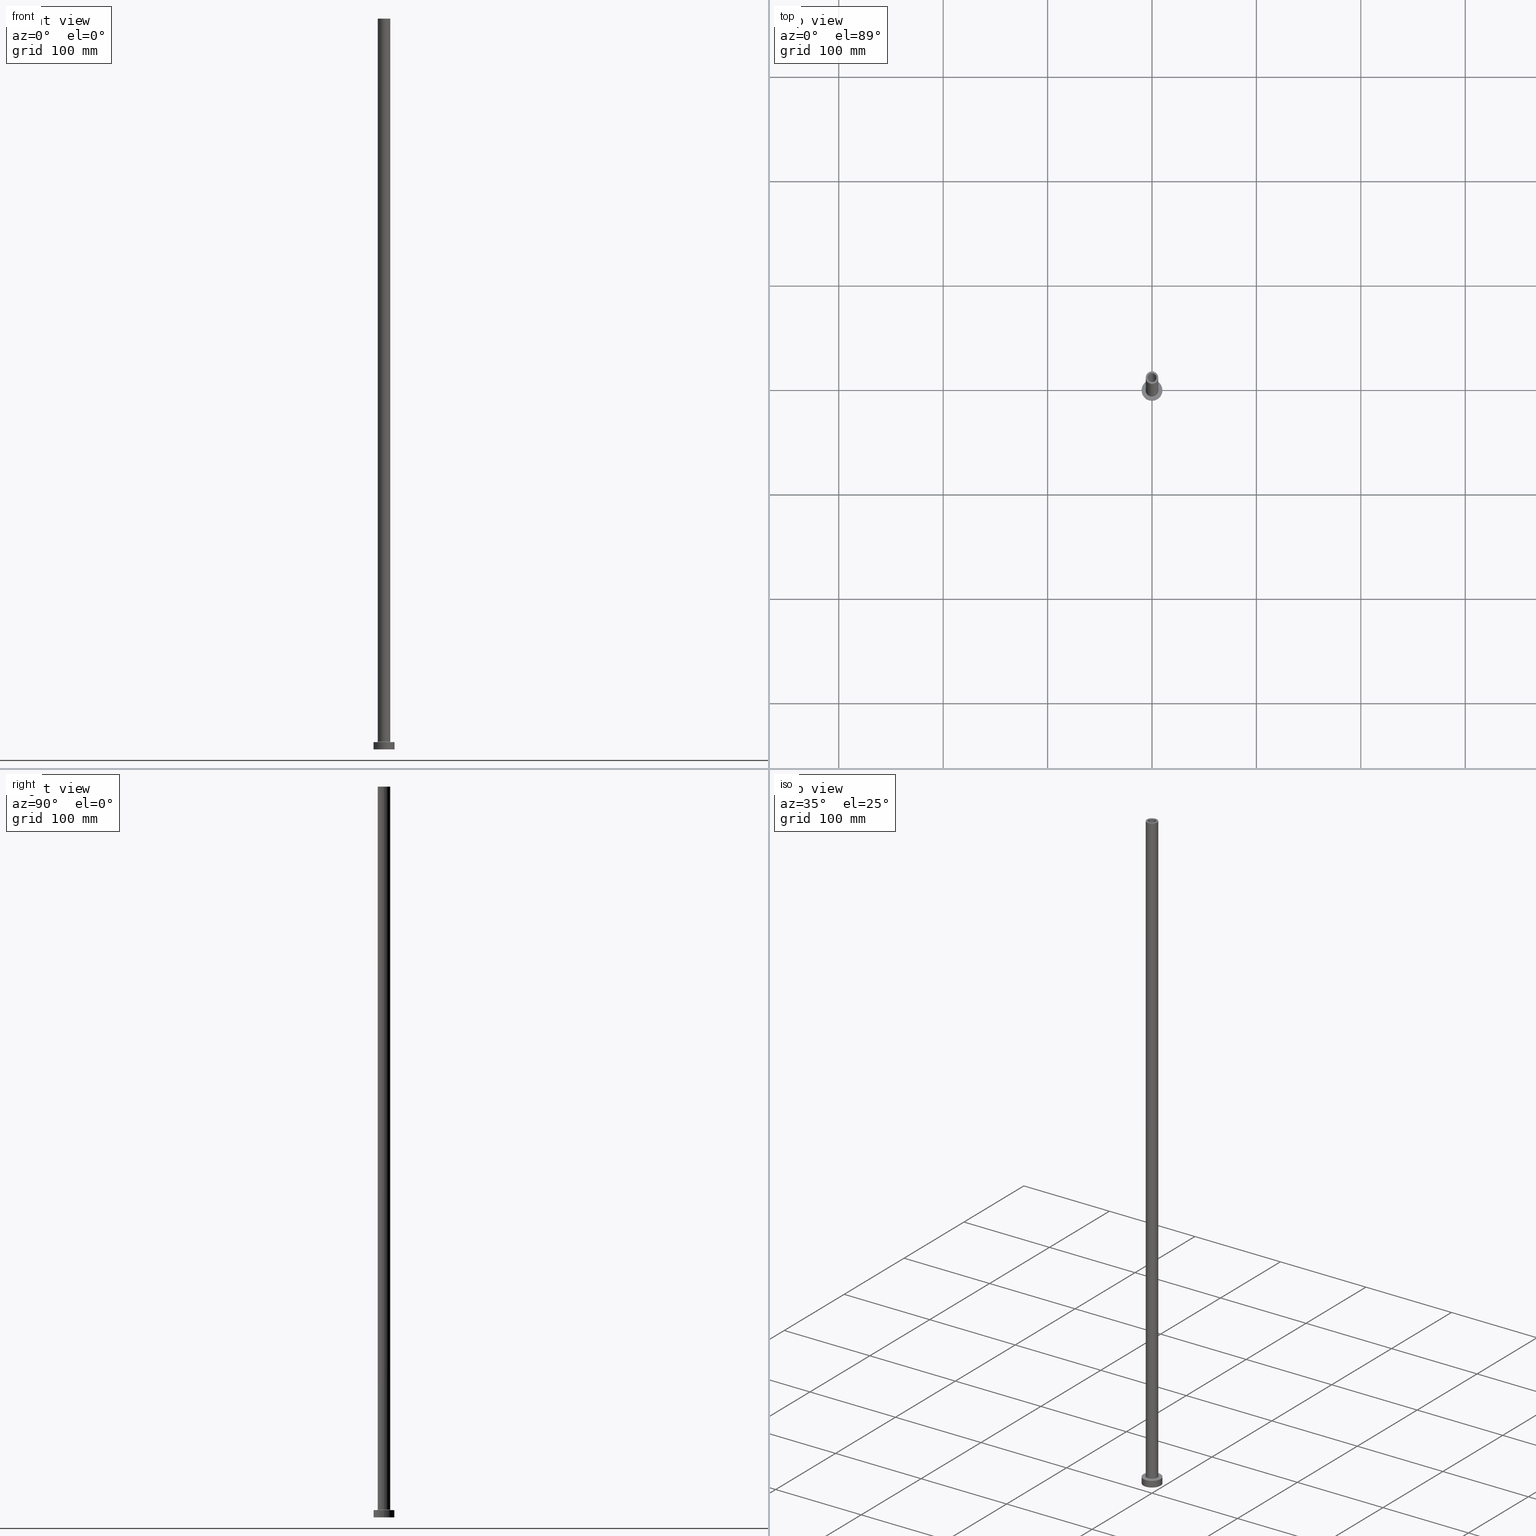
[diagram: canonical four-view strip — front | top / right | iso, engineering-drawing reading convention]
A machine part, canonical four-view strip (front | top / right | iso — engineering-drawing reading convention). The complete STEP part file that produces these views, byte-faithful:
ISO-10303-21;
HEADER;
FILE_DESCRIPTION (( 'STEP AP203' ),
    '1' );
FILE_NAME ('b7ef.STEP',
    '2023-02-13T11:54:43',
    ( '' ),
    ( '' ),
    'SwSTEP 2.0',
    'SolidWorks 2019',
    '' );
FILE_SCHEMA (( 'CONFIG_CONTROL_DESIGN' ));
ENDSEC;

DATA;
#1 = ORIENTED_EDGE ( 'NONE', *, *, #290, .T. ) ;
#2 = COORDINATED_UNIVERSAL_TIME_OFFSET ( 1, 0, .AHEAD. ) ;
#3 = FACE_OUTER_BOUND ( 'NONE', #113, .T. ) ;
#4 = EDGE_LOOP ( 'NONE', ( #304, #75 ) ) ;
#5 = PRODUCT_RELATED_PRODUCT_CATEGORY ( 'detail', '', ( #396 ) ) ;
#6 = AXIS2_PLACEMENT_3D ( 'NONE', #115, #302, #378 ) ;
#7 = FACE_OUTER_BOUND ( 'NONE', #260, .T. ) ;
#8 = ORIENTED_EDGE ( 'NONE', *, *, #133, .T. ) ;
#9 = CARTESIAN_POINT ( 'NONE',  ( 6.000000000000000888, 7.347880794884120722E-16, 7.700000000000040146 ) ) ;
#10 = DIRECTION ( 'NONE',  ( -1.000000000000000000, 0.000000000000000000, 0.000000000000000000 ) ) ;
#11 = EDGE_LOOP ( 'NONE', ( #230, #191, #46, #22 ) ) ;
#12 = AXIS2_PLACEMENT_3D ( 'NONE', #247, #310, #387 ) ;
#13 = CARTESIAN_POINT ( 'NONE',  ( 0.000000000000000000, 0.000000000000000000, 0.000000000000000000 ) ) ;
#14 = EDGE_CURVE ( 'NONE', #168, #148, #96, .T. ) ;
#15 = FACE_OUTER_BOUND ( 'NONE', #4, .T. ) ;
#16 = DIRECTION ( 'NONE',  ( -1.000000000000000000, 0.000000000000000000, 0.000000000000000000 ) ) ;
#17 = CYLINDRICAL_SURFACE ( 'NONE', #6, 10.00000000000000000 ) ;
#18 = DIRECTION ( 'NONE',  ( 0.000000000000000000, 0.000000000000000000, 1.000000000000000000 ) ) ;
#19 = EDGE_LOOP ( 'NONE', ( #108, #1 ) ) ;
#20 = AXIS2_PLACEMENT_3D ( 'NONE', #249, #179, #359 ) ;
#21 = CARTESIAN_POINT ( 'NONE',  ( -10.00000000000000000, 0.000000000000000000, 0.000000000000000000 ) ) ;
#22 = ORIENTED_EDGE ( 'NONE', *, *, #400, .F. ) ;
#23 = ADVANCED_FACE ( 'NONE', ( #235, #237 ), #379, .F. ) ;
#24 = CALENDAR_DATE ( 2023, 13, 2 ) ;
#25 = AXIS2_PLACEMENT_3D ( 'NONE', #121, #198, #416 ) ;
#26 = PERSON_AND_ORGANIZATION_ROLE ( 'creator' ) ;
#27 = VERTEX_POINT ( 'NONE', #71 ) ;
#28 = COORDINATED_UNIVERSAL_TIME_OFFSET ( 1, 0, .AHEAD. ) ;
#29 = CIRCLE ( 'NONE', #429, 4.250000000000000000 ) ;
#30 = VECTOR ( 'NONE', #300, 1000.000000000000000 ) ;
#31 = LINE ( 'NONE', #273, #69 ) ;
#32 = CALENDAR_DATE ( 2023, 13, 2 ) ;
#33 = CARTESIAN_POINT ( 'NONE',  ( 10.00000000000000000, 1.224646799147353256E-15, 7.000000000000000000 ) ) ;
#34 = ORIENTED_EDGE ( 'NONE', *, *, #133, .F. ) ;
#35 = DIRECTION ( 'NONE',  ( -0.000000000000000000, -0.000000000000000000, -1.000000000000000000 ) ) ;
#36 = AXIS2_PLACEMENT_3D ( 'NONE', #44, #124, #265 ) ;
#37 = CALENDAR_DATE ( 2023, 13, 2 ) ;
#38 = EDGE_CURVE ( 'NONE', #456, #318, #369, .T. ) ;
#39 = VERTEX_POINT ( 'NONE', #33 ) ;
#40 = DIRECTION ( 'NONE',  ( -0.000000000000000000, -0.000000000000000000, -1.000000000000000000 ) ) ;
#41 = AXIS2_PLACEMENT_3D ( 'NONE', #370, #226, #146 ) ;
#42 = APPROVAL_DATE_TIME ( #141, #432 ) ;
#43 = EDGE_LOOP ( 'NONE', ( #298, #111 ) ) ;
#44 = CARTESIAN_POINT ( 'NONE',  ( 0.000000000000000000, 0.000000000000000000, 667.4450793488831550 ) ) ;
#45 = LINE ( 'NONE', #433, #460 ) ;
#46 = ORIENTED_EDGE ( 'NONE', *, *, #245, .T. ) ;
#47 = CC_DESIGN_DATE_AND_TIME_ASSIGNMENT ( #386, #68, ( #365 ) ) ;
#48 = DIRECTION ( 'NONE',  ( 1.000000000000000000, 0.000000000000000000, 0.000000000000000000 ) ) ;
#49 = DIRECTION ( 'NONE',  ( 0.000000000000000000, 0.000000000000000000, 1.000000000000000000 ) ) ;
#50 = CIRCLE ( 'NONE', #218, 10.00000000000000000 ) ;
#51 = DIRECTION ( 'NONE',  ( 0.000000000000000000, 0.000000000000000000, -1.000000000000000000 ) ) ;
#52 = CARTESIAN_POINT ( 'NONE',  ( 4.250000000000000000, 5.204748896376250699E-16, 700.0000000000000000 ) ) ;
#53 = CYLINDRICAL_SURFACE ( 'NONE', #36, 4.400000000000000355 ) ;
#54 = ORIENTED_EDGE ( 'NONE', *, *, #65, .T. ) ;
#55 = AXIS2_PLACEMENT_3D ( 'NONE', #427, #279, #352 ) ;
#56 = CIRCLE ( 'NONE', #118, 6.000000000000000888 ) ;
#57 = CARTESIAN_POINT ( 'NONE',  ( -4.400000000000000355, 0.000000000000000000, 0.000000000000000000 ) ) ;
#58 = CARTESIAN_POINT ( 'NONE',  ( 0.000000000000000000, 0.000000000000000000, 654.9999999999998863 ) ) ;
#59 = DIRECTION ( 'NONE',  ( -0.000000000000000000, -0.000000000000000000, -1.000000000000000000 ) ) ;
#60 = ADVANCED_FACE ( 'NONE', ( #166, #403 ), #119, .F. ) ;
#61 = CARTESIAN_POINT ( 'NONE',  ( 0.000000000000000000, 0.000000000000000000, 0.000000000000000000 ) ) ;
#62 = PERSON_AND_ORGANIZATION_ROLE ( 'classification_officer' ) ;
#63 = AXIS2_PLACEMENT_3D ( 'NONE', #61, #312, #212 ) ;
#64 = ORIENTED_EDGE ( 'NONE', *, *, #308, .T. ) ;
#65 = EDGE_CURVE ( 'NONE', #289, #73, #425, .T. ) ;
#66 = APPROVAL_STATUS ( 'not_yet_approved' ) ;
#67 = DIRECTION ( 'NONE',  ( 1.000000000000000000, 0.000000000000000000, 0.000000000000000000 ) ) ;
#68 = DATE_TIME_ROLE ( 'creation_date' ) ;
#69 = VECTOR ( 'NONE', #452, 1000.000000000000000 ) ;
#70 = EDGE_CURVE ( 'NONE', #27, #39, #50, .T. ) ;
#71 = CARTESIAN_POINT ( 'NONE',  ( -10.00000000000000000, 0.000000000000000000, 7.000000000000000000 ) ) ;
#72 = ORIENTED_EDGE ( 'NONE', *, *, #65, .F. ) ;
#73 = VERTEX_POINT ( 'NONE', #258 ) ;
#74 = AXIS2_PLACEMENT_3D ( 'NONE', #328, #262, #188 ) ;
#75 = ORIENTED_EDGE ( 'NONE', *, *, #205, .T. ) ;
#76 = EDGE_CURVE ( 'NONE', #73, #168, #78, .T. ) ;
#77 = AXIS2_PLACEMENT_3D ( 'NONE', #13, #222, #143 ) ;
#78 = LINE ( 'NONE', #442, #411 ) ;
#79 = CARTESIAN_POINT ( 'NONE',  ( -6.000000000000000888, 0.000000000000000000, 700.0000000000000000 ) ) ;
#80 = APPROVAL ( #167, 'NEUR�EN�' ) ;
#81 = CARTESIAN_POINT ( 'NONE',  ( -6.000000000000000888, 0.000000000000000000, 700.0000000000000000 ) ) ;
#82 = AXIS2_PLACEMENT_3D ( 'NONE', #86, #49, #192 ) ;
#83 = CARTESIAN_POINT ( 'NONE',  ( 0.000000000000000000, 0.000000000000000000, 7.000000000000000000 ) ) ;
#84 = CARTESIAN_POINT ( 'NONE',  ( 0.000000000000000000, 0.000000000000000000, 0.000000000000000000 ) ) ;
#85 = VERTEX_POINT ( 'NONE', #81 ) ;
#86 = CARTESIAN_POINT ( 'NONE',  ( 0.000000000000000000, 0.000000000000000000, 700.0000000000000000 ) ) ;
#87 = CARTESIAN_POINT ( 'NONE',  ( 0.000000000000000000, 0.000000000000000000, 7.000000000000000000 ) ) ;
#88 = EDGE_LOOP ( 'NONE', ( #315, #435 ) ) ;
#89 = PLANE ( 'NONE',  #220 ) ;
#90 = TOROIDAL_SURFACE ( 'NONE', #278, 6.700000000000001066, 0.6999999999999999556 ) ;
#91 = CC_DESIGN_PERSON_AND_ORGANIZATION_ASSIGNMENT ( #350, #26, ( #365 ) ) ;
#92 = FACE_OUTER_BOUND ( 'NONE', #221, .T. ) ;
#93 = ORIENTED_EDGE ( 'NONE', *, *, #287, .T. ) ;
#94 = PERSON ( 'NEUR�EN�', 'NEUR�EN�', 'NEUR�EN�', ('NEUR�EN�'), ('NEUR�EN�'), ('NEUR�EN�') ) ;
#95 = FACE_OUTER_BOUND ( 'NONE', #349, .T. ) ;
#96 = CIRCLE ( 'NONE', #360, 4.250000000000000000 ) ;
#97 = DIRECTION ( 'NONE',  ( 0.000000000000000000, 0.000000000000000000, 1.000000000000000000 ) ) ;
#98 = ADVANCED_FACE ( 'NONE', ( #7 ), #223, .T. ) ;
#99 = CIRCLE ( 'NONE', #82, 6.000000000000000888 ) ;
#100 = APPROVAL_ROLE ( '' ) ;
#101 = CIRCLE ( 'NONE', #422, 4.400000000000000355 ) ;
#102 = CLOSED_SHELL ( 'NONE', ( #217, #346, #455, #261, #438, #321, #138, #60, #98, #408, #193, #355, #23, #184 ) ) ;
#103 = CARTESIAN_POINT ( 'NONE',  ( -6.000000000000000888, 0.000000000000000000, 7.700000000000040146 ) ) ;
#104 = ORIENTED_EDGE ( 'NONE', *, *, #176, .F. ) ;
#105 = ORIENTED_EDGE ( 'NONE', *, *, #70, .F. ) ;
#106 = PLANE ( 'NONE',  #20 ) ;
#107 = SHAPE_DEFINITION_REPRESENTATION ( #180, #299 ) ;
#108 = ORIENTED_EDGE ( 'NONE', *, *, #70, .T. ) ;
#109 = COORDINATED_UNIVERSAL_TIME_OFFSET ( 1, 0, .AHEAD. ) ;
#110 = DIRECTION ( 'NONE',  ( 1.000000000000000000, 0.000000000000000000, 0.000000000000000000 ) ) ;
#111 = ORIENTED_EDGE ( 'NONE', *, *, #172, .F. ) ;
#112 = EDGE_CURVE ( 'NONE', #210, #456, #324, .T. ) ;
#113 = EDGE_LOOP ( 'NONE', ( #142, #93, #446, #283 ) ) ;
#114 = ORIENTED_EDGE ( 'NONE', *, *, #329, .F. ) ;
#115 = CARTESIAN_POINT ( 'NONE',  ( 0.000000000000000000, 0.000000000000000000, 7.000000000000000000 ) ) ;
#116 = CYLINDRICAL_SURFACE ( 'NONE', #238, 4.250000000000000000 ) ;
#117 = CARTESIAN_POINT ( 'NONE',  ( 6.000000000000000888, 7.347880794884120722E-16, 700.0000000000000000 ) ) ;
#118 = AXIS2_PLACEMENT_3D ( 'NONE', #340, #18, #246 ) ;
#119 = PLANE ( 'NONE',  #77 ) ;
#120 = DIRECTION ( 'NONE',  ( 1.000000000000000000, 0.000000000000000000, 0.000000000000000000 ) ) ;
#121 = CARTESIAN_POINT ( 'NONE',  ( 0.000000000000000000, 0.000000000000000000, 0.000000000000000000 ) ) ;
#122 = CYLINDRICAL_SURFACE ( 'NONE', #414, 10.00000000000000000 ) ;
#123 = DESIGN_CONTEXT ( 'detailed design', #294, 'design' ) ;
#124 = DIRECTION ( 'NONE',  ( 0.000000000000000000, 0.000000000000000000, -1.000000000000000000 ) ) ;
#125 = AXIS2_PLACEMENT_3D ( 'NONE', #430, #40, #271 ) ;
#126 = COORDINATED_UNIVERSAL_TIME_OFFSET ( 1, 0, .AHEAD. ) ;
#127 = PERSON_AND_ORGANIZATION ( #94, #145 ) ;
#128 = CC_DESIGN_DATE_AND_TIME_ASSIGNMENT ( #144, #395, ( #348 ) ) ;
#129 = AXIS2_PLACEMENT_3D ( 'NONE', #150, #51, #397 ) ;
#130 = CARTESIAN_POINT ( 'NONE',  ( 0.000000000000000000, 0.000000000000000000, 7.700000000000040146 ) ) ;
#131 =( GEOMETRIC_REPRESENTATION_CONTEXT ( 3 ) GLOBAL_UNCERTAINTY_ASSIGNED_CONTEXT ( ( #154 ) ) GLOBAL_UNIT_ASSIGNED_CONTEXT ( ( #347, #453, #275 ) ) REPRESENTATION_CONTEXT ( 'NONE', 'WORKASPACE' ) );
#132 = EDGE_LOOP ( 'NONE', ( #173, #333, #320, #8 ) ) ;
#133 = EDGE_CURVE ( 'NONE', #443, #251, #440, .T. ) ;
#134 = CALENDAR_DATE ( 2023, 13, 2 ) ;
#135 = AXIS2_PLACEMENT_3D ( 'NONE', #450, #59, #407 ) ;
#136 = PRODUCT_DEFINITION_FORMATION_WITH_SPECIFIED_SOURCE ( 'LIBOVOLN�', '', #396, .NOT_KNOWN. ) ;
#137 = LOCAL_TIME ( 12, 54, 43.00000000000000000, #109 ) ;
#138 = ADVANCED_FACE ( 'NONE', ( #140, #434 ), #106, .T. ) ;
#139 = ORIENTED_EDGE ( 'NONE', *, *, #458, .T. ) ;
#140 = FACE_BOUND ( 'NONE', #362, .T. ) ;
#141 = DATE_AND_TIME ( #37, #137 ) ;
#142 = ORIENTED_EDGE ( 'NONE', *, *, #205, .F. ) ;
#143 = DIRECTION ( 'NONE',  ( 1.000000000000000000, 0.000000000000000000, -0.000000000000000000 ) ) ;
#144 = DATE_AND_TIME ( #134, #417 ) ;
#145 = ORGANIZATION ( 'NEUR�EN�', 'NEUR�EN�', '' ) ;
#146 = DIRECTION ( 'NONE',  ( 1.000000000000000000, 0.000000000000000000, 0.000000000000000000 ) ) ;
#147 = CARTESIAN_POINT ( 'NONE',  ( 0.000000000000000000, 0.000000000000000000, 700.0000000000000000 ) ) ;
#148 = VERTEX_POINT ( 'NONE', #288 ) ;
#149 = EDGE_CURVE ( 'NONE', #85, #426, #202, .T. ) ;
#150 = CARTESIAN_POINT ( 'NONE',  ( 0.000000000000000000, 0.000000000000000000, 700.0000000000000000 ) ) ;
#151 = CARTESIAN_POINT ( 'NONE',  ( 0.000000000000000000, 0.000000000000000000, 654.9999999999998863 ) ) ;
#152 = CARTESIAN_POINT ( 'NONE',  ( 0.000000000000000000, 0.000000000000000000, 700.0000000000000000 ) ) ;
#153 = FACE_OUTER_BOUND ( 'NONE', #11, .T. ) ;
#154 = UNCERTAINTY_MEASURE_WITH_UNIT (LENGTH_MEASURE( 1.000000000000000082E-05 ), #347, 'distance_accuracy_value', 'NONE');
#155 = CIRCLE ( 'NONE', #55, 0.7000000000000000666 ) ;
#156 = CARTESIAN_POINT ( 'NONE',  ( 10.00000000000000000, 1.224646799147353256E-15, 7.000000000000000000 ) ) ;
#157 = FACE_BOUND ( 'NONE', #263, .T. ) ;
#158 = APPROVAL ( #66, 'NEUR�EN�' ) ;
#159 = FACE_OUTER_BOUND ( 'NONE', #293, .T. ) ;
#160 = CARTESIAN_POINT ( 'NONE',  ( 6.000000000000000888, 7.347880794884120722E-16, 700.0000000000000000 ) ) ;
#161 = EDGE_CURVE ( 'NONE', #339, #251, #31, .T. ) ;
#162 = CALENDAR_DATE ( 2023, 13, 2 ) ;
#163 = APPROVAL_PERSON_ORGANIZATION ( #244, #80, #215 ) ;
#164 = PERSON_AND_ORGANIZATION ( #94, #145 ) ;
#165 = CARTESIAN_POINT ( 'NONE',  ( 0.000000000000000000, 0.000000000000000000, 654.9999999999998863 ) ) ;
#166 = FACE_BOUND ( 'NONE', #219, .T. ) ;
#167 = APPROVAL_STATUS ( 'not_yet_approved' ) ;
#168 = VERTEX_POINT ( 'NONE', #269 ) ;
#169 = CARTESIAN_POINT ( 'NONE',  ( 6.700000000000001066, 0.000000000000000000, 7.000000000000020428 ) ) ;
#170 = APPROVAL_DATE_TIME ( #353, #158 ) ;
#171 = LOCAL_TIME ( 12, 54, 43.00000000000000000, #28 ) ;
#172 = EDGE_CURVE ( 'NONE', #356, #431, #196, .T. ) ;
#173 = ORIENTED_EDGE ( 'NONE', *, *, #161, .F. ) ;
#174 = EDGE_LOOP ( 'NONE', ( #104, #54, #451, #314 ) ) ;
#175 = CARTESIAN_POINT ( 'NONE',  ( 0.000000000000000000, 0.000000000000000000, 700.0000000000000000 ) ) ;
#176 = EDGE_CURVE ( 'NONE', #289, #148, #233, .T. ) ;
#177 = CIRCLE ( 'NONE', #242, 4.400000000000000355 ) ;
#178 = ORIENTED_EDGE ( 'NONE', *, *, #161, .T. ) ;
#179 = DIRECTION ( 'NONE',  ( 0.000000000000000000, 0.000000000000000000, 1.000000000000000000 ) ) ;
#180 = PRODUCT_DEFINITION_SHAPE ( 'NONE', 'NONE',  #365 ) ;
#181 = ORIENTED_EDGE ( 'NONE', *, *, #287, .F. ) ;
#182 = AXIS2_PLACEMENT_3D ( 'NONE', #83, #441, #240 ) ;
#183 = VERTEX_POINT ( 'NONE', #409 ) ;
#184 = ADVANCED_FACE ( 'NONE', ( #368 ), #116, .F. ) ;
#185 = ORIENTED_EDGE ( 'NONE', *, *, #316, .T. ) ;
#186 = DIRECTION ( 'NONE',  ( 0.000000000000000000, 0.000000000000000000, 1.000000000000000000 ) ) ;
#187 = ORIENTED_EDGE ( 'NONE', *, *, #38, .T. ) ;
#188 = DIRECTION ( 'NONE',  ( 1.000000000000000000, 0.000000000000000000, 0.000000000000000000 ) ) ;
#189 = DIRECTION ( 'NONE',  ( 1.000000000000000000, 0.000000000000000000, 0.000000000000000000 ) ) ;
#190 = DIRECTION ( 'NONE',  ( 0.000000000000000000, 0.000000000000000000, -1.000000000000000000 ) ) ;
#191 = ORIENTED_EDGE ( 'NONE', *, *, #112, .F. ) ;
#192 = DIRECTION ( 'NONE',  ( 1.000000000000000000, 0.000000000000000000, 0.000000000000000000 ) ) ;
#193 = ADVANCED_FACE ( 'NONE', ( #153 ), #286, .F. ) ;
#194 = DIRECTION ( 'NONE',  ( 0.000000000000000000, 0.000000000000000000, -1.000000000000000000 ) ) ;
#195 = LINE ( 'NONE', #117, #214 ) ;
#196 = CIRCLE ( 'NONE', #25, 10.00000000000000000 ) ;
#197 = AXIS2_PLACEMENT_3D ( 'NONE', #87, #343, #189 ) ;
#198 = DIRECTION ( 'NONE',  ( 0.000000000000000000, 0.000000000000000000, 1.000000000000000000 ) ) ;
#199 = DIRECTION ( 'NONE',  ( -0.000000000000000000, -0.000000000000000000, -1.000000000000000000 ) ) ;
#200 = DIRECTION ( 'NONE',  ( 1.000000000000000000, 0.000000000000000000, 0.000000000000000000 ) ) ;
#201 = CARTESIAN_POINT ( 'NONE',  ( 0.000000000000000000, 0.000000000000000000, 0.000000000000000000 ) ) ;
#202 = CIRCLE ( 'NONE', #277, 6.000000000000000888 ) ;
#203 = PERSON_AND_ORGANIZATION_ROLE ( 'design_owner' ) ;
#204 = CARTESIAN_POINT ( 'NONE',  ( 0.000000000000000000, 0.000000000000000000, 700.0000000000000000 ) ) ;
#205 = EDGE_CURVE ( 'NONE', #426, #85, #99, .T. ) ;
#206 = MECHANICAL_CONTEXT ( 'NONE', #363, 'mechanical' ) ;
#207 = ORIENTED_EDGE ( 'NONE', *, *, #296, .T. ) ;
#208 = CC_DESIGN_SECURITY_CLASSIFICATION ( #348, ( #136 ) ) ;
#209 = COORDINATED_UNIVERSAL_TIME_OFFSET ( 1, 0, .AHEAD. ) ;
#210 = VERTEX_POINT ( 'NONE', #9 ) ;
#211 = AXIS2_PLACEMENT_3D ( 'NONE', #225, #372, #405 ) ;
#212 = DIRECTION ( 'NONE',  ( 1.000000000000000000, 0.000000000000000000, 0.000000000000000000 ) ) ;
#213 = EDGE_CURVE ( 'NONE', #39, #356, #419, .T. ) ;
#214 = VECTOR ( 'NONE', #447, 1000.000000000000000 ) ;
#215 = APPROVAL_ROLE ( '' ) ;
#216 = AXIS2_PLACEMENT_3D ( 'NONE', #201, #257, #297 ) ;
#217 = ADVANCED_FACE ( 'NONE', ( #358 ), #330, .F. ) ;
#218 = AXIS2_PLACEMENT_3D ( 'NONE', #373, #332, #399 ) ;
#219 = EDGE_LOOP ( 'NONE', ( #34, #114 ) ) ;
#220 = AXIS2_PLACEMENT_3D ( 'NONE', #152, #337, #444 ) ;
#221 = EDGE_LOOP ( 'NONE', ( #139, #178, #385, #342 ) ) ;
#222 = DIRECTION ( 'NONE',  ( 0.000000000000000000, 0.000000000000000000, 1.000000000000000000 ) ) ;
#223 = CYLINDRICAL_SURFACE ( 'NONE', #266, 6.000000000000000888 ) ;
#224 = CARTESIAN_POINT ( 'NONE',  ( 4.250000000000000000, 5.204748896376250699E-16, 700.0000000000000000 ) ) ;
#225 = CARTESIAN_POINT ( 'NONE',  ( 0.000000000000000000, 0.000000000000000000, 7.700000000000040146 ) ) ;
#226 = DIRECTION ( 'NONE',  ( 0.000000000000000000, 0.000000000000000000, 1.000000000000000000 ) ) ;
#227 = CARTESIAN_POINT ( 'NONE',  ( 4.400000000000000355, 5.388445916248354013E-16, 654.9999999999998863 ) ) ;
#228 = CARTESIAN_POINT ( 'NONE',  ( 0.000000000000000000, 0.000000000000000000, 700.0000000000000000 ) ) ;
#229 = DIRECTION ( 'NONE',  ( -0.000000000000000000, -0.000000000000000000, -1.000000000000000000 ) ) ;
#230 = ORIENTED_EDGE ( 'NONE', *, *, #38, .F. ) ;
#231 = CARTESIAN_POINT ( 'NONE',  ( 4.400000000000000355, 5.388445916248354013E-16, 0.000000000000000000 ) ) ;
#232 = EDGE_CURVE ( 'NONE', #27, #431, #45, .T. ) ;
#233 = LINE ( 'NONE', #52, #325 ) ;
#234 = DIRECTION ( 'NONE',  ( 0.000000000000000000, 0.000000000000000000, -1.000000000000000000 ) ) ;
#235 = FACE_BOUND ( 'NONE', #391, .T. ) ;
#236 = CARTESIAN_POINT ( 'NONE',  ( -4.400000000000000355, 0.000000000000000000, 667.4450793488831550 ) ) ;
#237 = FACE_OUTER_BOUND ( 'NONE', #88, .T. ) ;
#238 = AXIS2_PLACEMENT_3D ( 'NONE', #228, #190, #16 ) ;
#239 = LOCAL_TIME ( 12, 54, 43.00000000000000000, #209 ) ;
#240 = DIRECTION ( 'NONE',  ( 1.000000000000000000, 0.000000000000000000, 0.000000000000000000 ) ) ;
#241 = DIRECTION ( 'NONE',  ( 1.000000000000000000, 0.000000000000000000, 0.000000000000000000 ) ) ;
#242 = AXIS2_PLACEMENT_3D ( 'NONE', #371, #199, #305 ) ;
#243 = CYLINDRICAL_SURFACE ( 'NONE', #135, 6.000000000000000888 ) ;
#244 = PERSON_AND_ORGANIZATION ( #94, #145 ) ;
#245 = EDGE_CURVE ( 'NONE', #210, #248, #155, .T. ) ;
#246 = DIRECTION ( 'NONE',  ( 1.000000000000000000, 0.000000000000000000, 0.000000000000000000 ) ) ;
#247 = CARTESIAN_POINT ( 'NONE',  ( -6.700000000000001066, 8.205133554287267548E-16, 7.700000000000040146 ) ) ;
#248 = VERTEX_POINT ( 'NONE', #169 ) ;
#249 = CARTESIAN_POINT ( 'NONE',  ( 0.000000000000000000, 0.000000000000000000, 7.000000000000000000 ) ) ;
#250 = EDGE_CURVE ( 'NONE', #73, #289, #29, .T. ) ;
#251 = VERTEX_POINT ( 'NONE', #231 ) ;
#252 = ORIENTED_EDGE ( 'NONE', *, *, #400, .T. ) ;
#253 = DIRECTION ( 'NONE',  ( 1.000000000000000000, 0.000000000000000000, -0.000000000000000000 ) ) ;
#254 = ORIENTED_EDGE ( 'NONE', *, *, #250, .T. ) ;
#255 = APPROVAL_ROLE ( '' ) ;
#256 = EDGE_CURVE ( 'NONE', #248, #318, #345, .T. ) ;
#257 = DIRECTION ( 'NONE',  ( 0.000000000000000000, 0.000000000000000000, 1.000000000000000000 ) ) ;
#258 = CARTESIAN_POINT ( 'NONE',  ( -4.250000000000000000, 0.000000000000000000, 700.0000000000000000 ) ) ;
#259 = LINE ( 'NONE', #79, #30 ) ;
#260 = EDGE_LOOP ( 'NONE', ( #181, #437, #185, #357 ) ) ;
#261 = ADVANCED_FACE ( 'NONE', ( #3 ), #243, .T. ) ;
#262 = DIRECTION ( 'NONE',  ( 0.000000000000000000, 0.000000000000000000, 1.000000000000000000 ) ) ;
#263 = EDGE_LOOP ( 'NONE', ( #415, #72 ) ) ;
#264 = CARTESIAN_POINT ( 'NONE',  ( 0.000000000000000000, 0.000000000000000000, 667.4450793488831550 ) ) ;
#265 = DIRECTION ( 'NONE',  ( -1.000000000000000000, 0.000000000000000000, 0.000000000000000000 ) ) ;
#266 = AXIS2_PLACEMENT_3D ( 'NONE', #147, #335, #439 ) ;
#267 = CYLINDRICAL_SURFACE ( 'NONE', #394, 4.400000000000000355 ) ;
#268 = ORIENTED_EDGE ( 'NONE', *, *, #172, .T. ) ;
#269 = CARTESIAN_POINT ( 'NONE',  ( -4.250000000000000000, 0.000000000000000000, 654.9999999999998863 ) ) ;
#270 = APPLICATION_PROTOCOL_DEFINITION ( 'international standard', 'config_control_design', 1994, #294 ) ;
#271 = DIRECTION ( 'NONE',  ( 1.000000000000000000, 0.000000000000000000, 0.000000000000000000 ) ) ;
#272 = CC_DESIGN_APPROVAL ( #432, ( #348 ) ) ;
#273 = CARTESIAN_POINT ( 'NONE',  ( 4.400000000000000355, 5.388445916248354013E-16, 667.4450793488831550 ) ) ;
#274 = SECURITY_CLASSIFICATION_LEVEL ( 'unclassified' ) ;
#275 =( NAMED_UNIT ( * ) SI_UNIT ( $, .STERADIAN. ) SOLID_ANGLE_UNIT ( ) );
#276 = CC_DESIGN_PERSON_AND_ORGANIZATION_ASSIGNMENT ( #306, #307, ( #136 ) ) ;
#277 = AXIS2_PLACEMENT_3D ( 'NONE', #175, #317, #67 ) ;
#278 = AXIS2_PLACEMENT_3D ( 'NONE', #130, #97, #344 ) ;
#279 = DIRECTION ( 'NONE',  ( 0.000000000000000000, -1.000000000000000000, 0.000000000000000000 ) ) ;
#280 = DIRECTION ( 'NONE',  ( 0.000000000000000000, 0.000000000000000000, 1.000000000000000000 ) ) ;
#281 = DIRECTION ( 'NONE',  ( 0.000000000000000000, 0.000000000000000000, 1.000000000000000000 ) ) ;
#282 = DIRECTION ( 'NONE',  ( 1.000000000000000000, 0.000000000000000000, 0.000000000000000000 ) ) ;
#283 = ORIENTED_EDGE ( 'NONE', *, *, #316, .F. ) ;
#284 = ORIENTED_EDGE ( 'NONE', *, *, #213, .T. ) ;
#285 = EDGE_LOOP ( 'NONE', ( #390, #284, #268, #313 ) ) ;
#286 = TOROIDAL_SURFACE ( 'NONE', #74, 6.700000000000001066, 0.6999999999999999556 ) ;
#287 = EDGE_CURVE ( 'NONE', #426, #210, #195, .T. ) ;
#288 = CARTESIAN_POINT ( 'NONE',  ( 4.250000000000000000, 5.204748896376250699E-16, 654.9999999999998863 ) ) ;
#289 = VERTEX_POINT ( 'NONE', #224 ) ;
#290 = EDGE_CURVE ( 'NONE', #39, #27, #388, .T. ) ;
#291 = CIRCLE ( 'NONE', #197, 6.700000000000001066 ) ;
#292 = ORIENTED_EDGE ( 'NONE', *, *, #256, .F. ) ;
#293 = EDGE_LOOP ( 'NONE', ( #351, #105, #366, #207 ) ) ;
#294 = APPLICATION_CONTEXT ( 'configuration controlled 3d designs of mechanical parts and assemblies' ) ;
#295 = LOCAL_TIME ( 12, 54, 43.00000000000000000, #126 ) ;
#296 = EDGE_CURVE ( 'NONE', #431, #356, #301, .T. ) ;
#297 = DIRECTION ( 'NONE',  ( 1.000000000000000000, 0.000000000000000000, 0.000000000000000000 ) ) ;
#298 = ORIENTED_EDGE ( 'NONE', *, *, #296, .F. ) ;
#299 = ADVANCED_BREP_SHAPE_REPRESENTATION ( 'b7ef', ( #336, #63 ), #131 ) ;
#300 = DIRECTION ( 'NONE',  ( -0.000000000000000000, -0.000000000000000000, -1.000000000000000000 ) ) ;
#301 = CIRCLE ( 'NONE', #216, 10.00000000000000000 ) ;
#302 = DIRECTION ( 'NONE',  ( -0.000000000000000000, -0.000000000000000000, -1.000000000000000000 ) ) ;
#303 = LINE ( 'NONE', #236, #364 ) ;
#304 = ORIENTED_EDGE ( 'NONE', *, *, #149, .T. ) ;
#305 = DIRECTION ( 'NONE',  ( 1.000000000000000000, 0.000000000000000000, 0.000000000000000000 ) ) ;
#306 = PERSON_AND_ORGANIZATION ( #94, #145 ) ;
#307 = PERSON_AND_ORGANIZATION_ROLE ( 'design_supplier' ) ;
#308 = EDGE_CURVE ( 'NONE', #148, #168, #319, .T. ) ;
#309 = APPROVAL_DATE_TIME ( #354, #80 ) ;
#310 = DIRECTION ( 'NONE',  ( 1.224646799147353207E-16, 1.000000000000000000, -0.000000000000000000 ) ) ;
#311 = AXIS2_PLACEMENT_3D ( 'NONE', #457, #280, #241 ) ;
#312 = DIRECTION ( 'NONE',  ( 0.000000000000000000, 0.000000000000000000, 1.000000000000000000 ) ) ;
#313 = ORIENTED_EDGE ( 'NONE', *, *, #232, .F. ) ;
#314 = ORIENTED_EDGE ( 'NONE', *, *, #308, .F. ) ;
#315 = ORIENTED_EDGE ( 'NONE', *, *, #458, .F. ) ;
#316 = EDGE_CURVE ( 'NONE', #85, #456, #259, .T. ) ;
#317 = DIRECTION ( 'NONE',  ( 0.000000000000000000, 0.000000000000000000, 1.000000000000000000 ) ) ;
#318 = VERTEX_POINT ( 'NONE', #404 ) ;
#319 = CIRCLE ( 'NONE', #454, 4.250000000000000000 ) ;
#320 = ORIENTED_EDGE ( 'NONE', *, *, #423, .T. ) ;
#321 = ADVANCED_FACE ( 'NONE', ( #159 ), #122, .T. ) ;
#322 = DIRECTION ( 'NONE',  ( -0.000000000000000000, -0.000000000000000000, -1.000000000000000000 ) ) ;
#323 = ORIENTED_EDGE ( 'NONE', *, *, #176, .T. ) ;
#324 = CIRCLE ( 'NONE', #211, 6.000000000000000888 ) ;
#325 = VECTOR ( 'NONE', #194, 1000.000000000000000 ) ;
#326 = DIRECTION ( 'NONE',  ( 0.000000000000000000, 0.000000000000000000, -1.000000000000000000 ) ) ;
#327 = ORIENTED_EDGE ( 'NONE', *, *, #14, .F. ) ;
#328 = CARTESIAN_POINT ( 'NONE',  ( 0.000000000000000000, 0.000000000000000000, 7.700000000000040146 ) ) ;
#329 = EDGE_CURVE ( 'NONE', #251, #443, #177, .T. ) ;
#330 = CYLINDRICAL_SURFACE ( 'NONE', #129, 4.250000000000000000 ) ;
#331 = DIRECTION ( 'NONE',  ( -0.000000000000000000, -0.000000000000000000, -1.000000000000000000 ) ) ;
#332 = DIRECTION ( 'NONE',  ( 0.000000000000000000, 0.000000000000000000, 1.000000000000000000 ) ) ;
#333 = ORIENTED_EDGE ( 'NONE', *, *, #392, .T. ) ;
#334 = CARTESIAN_POINT ( 'NONE',  ( 0.000000000000000000, 0.000000000000000000, 7.000000000000000000 ) ) ;
#335 = DIRECTION ( 'NONE',  ( -0.000000000000000000, -0.000000000000000000, -1.000000000000000000 ) ) ;
#336 = MANIFOLD_SOLID_BREP ( 'Odebrat vysunut�m4', #102 ) ;
#337 = DIRECTION ( 'NONE',  ( 0.000000000000000000, 0.000000000000000000, 1.000000000000000000 ) ) ;
#338 = VECTOR ( 'NONE', #322, 1000.000000000000000 ) ;
#339 = VERTEX_POINT ( 'NONE', #227 ) ;
#340 = CARTESIAN_POINT ( 'NONE',  ( 0.000000000000000000, 0.000000000000000000, 7.700000000000040146 ) ) ;
#341 = CC_DESIGN_PERSON_AND_ORGANIZATION_ASSIGNMENT ( #384, #203, ( #396 ) ) ;
#342 = ORIENTED_EDGE ( 'NONE', *, *, #423, .F. ) ;
#343 = DIRECTION ( 'NONE',  ( -0.000000000000000000, -0.000000000000000000, -1.000000000000000000 ) ) ;
#344 = DIRECTION ( 'NONE',  ( 1.000000000000000000, 0.000000000000000000, 0.000000000000000000 ) ) ;
#345 = CIRCLE ( 'NONE', #125, 6.700000000000001066 ) ;
#346 = ADVANCED_FACE ( 'NONE', ( #92 ), #53, .F. ) ;
#347 =( LENGTH_UNIT ( ) NAMED_UNIT ( * ) SI_UNIT ( .MILLI., .METRE. ) );
#348 = SECURITY_CLASSIFICATION ( '', '', #274 ) ;
#349 = EDGE_LOOP ( 'NONE', ( #449, #187, #292, #459 ) ) ;
#350 = PERSON_AND_ORGANIZATION ( #94, #145 ) ;
#351 = ORIENTED_EDGE ( 'NONE', *, *, #213, .F. ) ;
#352 = DIRECTION ( 'NONE',  ( 0.000000000000000000, 0.000000000000000000, -1.000000000000000000 ) ) ;
#353 = DATE_AND_TIME ( #24, #171 ) ;
#354 = DATE_AND_TIME ( #162, #295 ) ;
#355 = ADVANCED_FACE ( 'NONE', ( #401 ), #267, .F. ) ;
#356 = VERTEX_POINT ( 'NONE', #375 ) ;
#357 = ORIENTED_EDGE ( 'NONE', *, *, #445, .T. ) ;
#358 = FACE_OUTER_BOUND ( 'NONE', #402, .T. ) ;
#359 = DIRECTION ( 'NONE',  ( 1.000000000000000000, 0.000000000000000000, -0.000000000000000000 ) ) ;
#360 = AXIS2_PLACEMENT_3D ( 'NONE', #58, #412, #200 ) ;
#361 = AXIS2_PLACEMENT_3D ( 'NONE', #84, #229, #110 ) ;
#362 = EDGE_LOOP ( 'NONE', ( #393, #252 ) ) ;
#363 = APPLICATION_CONTEXT ( 'configuration controlled 3d designs of mechanical parts and assemblies' ) ;
#364 = VECTOR ( 'NONE', #234, 1000.000000000000000 ) ;
#365 = PRODUCT_DEFINITION ( 'NEZN�M�', '', #136, #123 ) ;
#366 = ORIENTED_EDGE ( 'NONE', *, *, #232, .T. ) ;
#367 = APPROVAL_PERSON_ORGANIZATION ( #428, #432, #255 ) ;
#368 = FACE_OUTER_BOUND ( 'NONE', #174, .T. ) ;
#369 = CIRCLE ( 'NONE', #12, 0.7000000000000000666 ) ;
#370 = CARTESIAN_POINT ( 'NONE',  ( 0.000000000000000000, 0.000000000000000000, 700.0000000000000000 ) ) ;
#371 = CARTESIAN_POINT ( 'NONE',  ( 0.000000000000000000, 0.000000000000000000, 0.000000000000000000 ) ) ;
#372 = DIRECTION ( 'NONE',  ( 0.000000000000000000, 0.000000000000000000, 1.000000000000000000 ) ) ;
#373 = CARTESIAN_POINT ( 'NONE',  ( 0.000000000000000000, 0.000000000000000000, 7.000000000000000000 ) ) ;
#374 = CC_DESIGN_APPROVAL ( #80, ( #136 ) ) ;
#375 = CARTESIAN_POINT ( 'NONE',  ( 10.00000000000000000, 1.224646799147353256E-15, 0.000000000000000000 ) ) ;
#376 = FACE_OUTER_BOUND ( 'NONE', #285, .T. ) ;
#377 = CC_DESIGN_PERSON_AND_ORGANIZATION_ASSIGNMENT ( #127, #62, ( #348 ) ) ;
#378 = DIRECTION ( 'NONE',  ( -1.000000000000000000, 0.000000000000000000, 0.000000000000000000 ) ) ;
#379 = PLANE ( 'NONE',  #421 ) ;
#380 = APPROVAL_PERSON_ORGANIZATION ( #424, #158, #100 ) ;
#381 = DIRECTION ( 'NONE',  ( 0.000000000000000000, 0.000000000000000000, 1.000000000000000000 ) ) ;
#382 = CC_DESIGN_PERSON_AND_ORGANIZATION_ASSIGNMENT ( #164, #418, ( #136 ) ) ;
#383 = CIRCLE ( 'NONE', #311, 4.400000000000000355 ) ;
#384 = PERSON_AND_ORGANIZATION ( #94, #145 ) ;
#385 = ORIENTED_EDGE ( 'NONE', *, *, #329, .T. ) ;
#386 = DATE_AND_TIME ( #32, #239 ) ;
#387 = DIRECTION ( 'NONE',  ( -1.000000000000000000, 1.224646799147353454E-16, 0.000000000000000000 ) ) ;
#388 = CIRCLE ( 'NONE', #182, 10.00000000000000000 ) ;
#389 = DIRECTION ( 'NONE',  ( 0.000000000000000000, 0.000000000000000000, 1.000000000000000000 ) ) ;
#390 = ORIENTED_EDGE ( 'NONE', *, *, #290, .F. ) ;
#391 = EDGE_LOOP ( 'NONE', ( #406, #64 ) ) ;
#392 = EDGE_CURVE ( 'NONE', #339, #183, #101, .T. ) ;
#393 = ORIENTED_EDGE ( 'NONE', *, *, #256, .T. ) ;
#394 = AXIS2_PLACEMENT_3D ( 'NONE', #264, #413, #10 ) ;
#395 = DATE_TIME_ROLE ( 'classification_date' ) ;
#396 = PRODUCT ( 'b7ef', 'b7ef', '', ( #206 ) ) ;
#397 = DIRECTION ( 'NONE',  ( -1.000000000000000000, 0.000000000000000000, 0.000000000000000000 ) ) ;
#398 = ORIENTED_EDGE ( 'NONE', *, *, #76, .F. ) ;
#399 = DIRECTION ( 'NONE',  ( 1.000000000000000000, 0.000000000000000000, 0.000000000000000000 ) ) ;
#400 = EDGE_CURVE ( 'NONE', #318, #248, #291, .T. ) ;
#401 = FACE_OUTER_BOUND ( 'NONE', #132, .T. ) ;
#402 = EDGE_LOOP ( 'NONE', ( #254, #323, #327, #398 ) ) ;
#403 = FACE_OUTER_BOUND ( 'NONE', #43, .T. ) ;
#404 = CARTESIAN_POINT ( 'NONE',  ( -6.700000000000001066, 8.205133554287267548E-16, 7.000000000000020428 ) ) ;
#405 = DIRECTION ( 'NONE',  ( 1.000000000000000000, 0.000000000000000000, 0.000000000000000000 ) ) ;
#406 = ORIENTED_EDGE ( 'NONE', *, *, #14, .T. ) ;
#407 = DIRECTION ( 'NONE',  ( -1.000000000000000000, 0.000000000000000000, 0.000000000000000000 ) ) ;
#408 = ADVANCED_FACE ( 'NONE', ( #157, #15 ), #89, .T. ) ;
#409 = CARTESIAN_POINT ( 'NONE',  ( -4.400000000000000355, 0.000000000000000000, 654.9999999999998863 ) ) ;
#410 = CARTESIAN_POINT ( 'NONE',  ( 0.000000000000000000, 0.000000000000000000, 654.9999999999998863 ) ) ;
#411 = VECTOR ( 'NONE', #326, 1000.000000000000000 ) ;
#412 = DIRECTION ( 'NONE',  ( 0.000000000000000000, 0.000000000000000000, 1.000000000000000000 ) ) ;
#413 = DIRECTION ( 'NONE',  ( 0.000000000000000000, 0.000000000000000000, -1.000000000000000000 ) ) ;
#414 = AXIS2_PLACEMENT_3D ( 'NONE', #334, #331, #448 ) ;
#415 = ORIENTED_EDGE ( 'NONE', *, *, #250, .F. ) ;
#416 = DIRECTION ( 'NONE',  ( 1.000000000000000000, 0.000000000000000000, 0.000000000000000000 ) ) ;
#417 = LOCAL_TIME ( 12, 54, 43.00000000000000000, #2 ) ;
#418 = PERSON_AND_ORGANIZATION_ROLE ( 'creator' ) ;
#419 = LINE ( 'NONE', #156, #338 ) ;
#420 = APPLICATION_PROTOCOL_DEFINITION ( 'international standard', 'config_control_design', 1994, #363 ) ;
#421 = AXIS2_PLACEMENT_3D ( 'NONE', #165, #389, #253 ) ;
#422 = AXIS2_PLACEMENT_3D ( 'NONE', #410, #381, #48 ) ;
#423 = EDGE_CURVE ( 'NONE', #183, #443, #303, .T. ) ;
#424 = PERSON_AND_ORGANIZATION ( #94, #145 ) ;
#425 = CIRCLE ( 'NONE', #41, 4.250000000000000000 ) ;
#426 = VERTEX_POINT ( 'NONE', #160 ) ;
#427 = CARTESIAN_POINT ( 'NONE',  ( 6.700000000000001066, 0.000000000000000000, 7.700000000000040146 ) ) ;
#428 = PERSON_AND_ORGANIZATION ( #94, #145 ) ;
#429 = AXIS2_PLACEMENT_3D ( 'NONE', #204, #281, #282 ) ;
#430 = CARTESIAN_POINT ( 'NONE',  ( 0.000000000000000000, 0.000000000000000000, 7.000000000000000000 ) ) ;
#431 = VERTEX_POINT ( 'NONE', #21 ) ;
#432 = APPROVAL ( #461, 'NEUR�EN�' ) ;
#433 = CARTESIAN_POINT ( 'NONE',  ( -10.00000000000000000, 0.000000000000000000, 7.000000000000000000 ) ) ;
#434 = FACE_OUTER_BOUND ( 'NONE', #19, .T. ) ;
#435 = ORIENTED_EDGE ( 'NONE', *, *, #392, .F. ) ;
#436 = CC_DESIGN_APPROVAL ( #158, ( #365 ) ) ;
#437 = ORIENTED_EDGE ( 'NONE', *, *, #149, .F. ) ;
#438 = ADVANCED_FACE ( 'NONE', ( #376 ), #17, .T. ) ;
#439 = DIRECTION ( 'NONE',  ( -1.000000000000000000, 0.000000000000000000, 0.000000000000000000 ) ) ;
#440 = CIRCLE ( 'NONE', #361, 4.400000000000000355 ) ;
#441 = DIRECTION ( 'NONE',  ( 0.000000000000000000, 0.000000000000000000, 1.000000000000000000 ) ) ;
#442 = CARTESIAN_POINT ( 'NONE',  ( -4.250000000000000000, 0.000000000000000000, 700.0000000000000000 ) ) ;
#443 = VERTEX_POINT ( 'NONE', #57 ) ;
#444 = DIRECTION ( 'NONE',  ( 1.000000000000000000, 0.000000000000000000, -0.000000000000000000 ) ) ;
#445 = EDGE_CURVE ( 'NONE', #456, #210, #56, .T. ) ;
#446 = ORIENTED_EDGE ( 'NONE', *, *, #112, .T. ) ;
#447 = DIRECTION ( 'NONE',  ( -0.000000000000000000, -0.000000000000000000, -1.000000000000000000 ) ) ;
#448 = DIRECTION ( 'NONE',  ( -1.000000000000000000, 0.000000000000000000, 0.000000000000000000 ) ) ;
#449 = ORIENTED_EDGE ( 'NONE', *, *, #445, .F. ) ;
#450 = CARTESIAN_POINT ( 'NONE',  ( 0.000000000000000000, 0.000000000000000000, 700.0000000000000000 ) ) ;
#451 = ORIENTED_EDGE ( 'NONE', *, *, #76, .T. ) ;
#452 = DIRECTION ( 'NONE',  ( 0.000000000000000000, 0.000000000000000000, -1.000000000000000000 ) ) ;
#453 =( NAMED_UNIT ( * ) PLANE_ANGLE_UNIT ( ) SI_UNIT ( $, .RADIAN. ) );
#454 = AXIS2_PLACEMENT_3D ( 'NONE', #151, #186, #120 ) ;
#455 = ADVANCED_FACE ( 'NONE', ( #95 ), #90, .F. ) ;
#456 = VERTEX_POINT ( 'NONE', #103 ) ;
#457 = CARTESIAN_POINT ( 'NONE',  ( 0.000000000000000000, 0.000000000000000000, 654.9999999999998863 ) ) ;
#458 = EDGE_CURVE ( 'NONE', #183, #339, #383, .T. ) ;
#459 = ORIENTED_EDGE ( 'NONE', *, *, #245, .F. ) ;
#460 = VECTOR ( 'NONE', #35, 1000.000000000000000 ) ;
#461 = APPROVAL_STATUS ( 'not_yet_approved' ) ;
ENDSEC;
END-ISO-10303-21;
